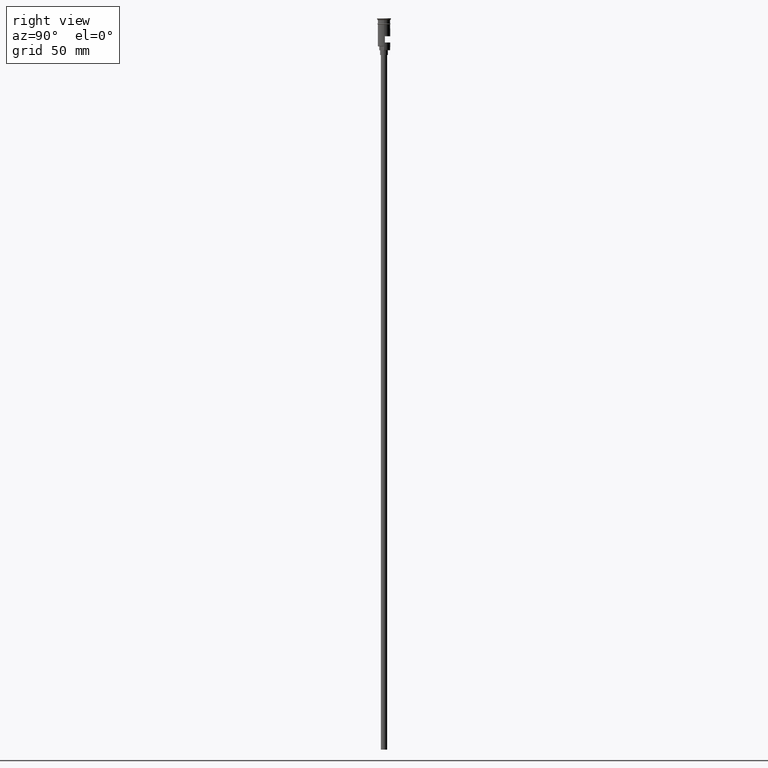
[diagram: clean part render]
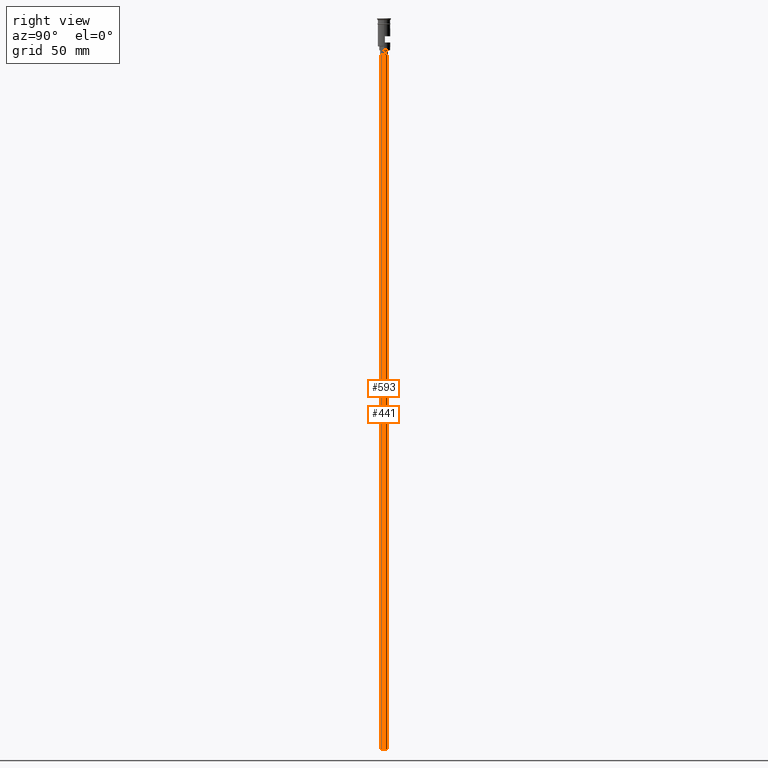
[diagram: same view with one multi-face feature highlighted, each face labeled with its STEP entity id]
A machine part, right view. The highlighted faces form ONE feature: a constant-radius fillet chain: 2 tangent blend faces with common blend radius 2 mm. The faces share edges in the B-rep.
Their STEP definitions:
[1] entity #593 (Cylinder):
#60 = CARTESIAN_POINT ( 'NONE',  ( 2.000000000000000000, 0.000000000000000000, -23.49999999999999645 ) ) ;
#97 = CARTESIAN_POINT ( 'NONE',  ( 0.000000000000000000, 0.000000000000000000, -470.5000000000000568 ) ) ;
#147 = CARTESIAN_POINT ( 'NONE',  ( 0.000000000000000000, 0.000000000000000000, -23.49999999999999645 ) ) ;
#163 = VERTEX_POINT ( 'NONE', #1095 ) ;
#179 = DIRECTION ( 'NONE',  ( -0.000000000000000000, -0.000000000000000000, 1.000000000000000000 ) ) ;
#192 = ORIENTED_EDGE ( 'NONE', *, *, #512, .F. ) ;
#247 = VERTEX_POINT ( 'NONE', #1582 ) ;
#288 = EDGE_CURVE ( 'NONE', #1576, #417, #1558, .T. ) ;
#290 = VECTOR ( 'NONE', #179, 1000.000000000000000 ) ;
#383 = ORIENTED_EDGE ( 'NONE', *, *, #1216, .T. ) ;
#417 = VERTEX_POINT ( 'NONE', #60 ) ;
#446 = ORIENTED_EDGE ( 'NONE', *, *, #798, .F. ) ;
#462 = CYLINDRICAL_SURFACE ( 'NONE', #1287, 2.000000000000000000 ) ;
#496 = CARTESIAN_POINT ( 'NONE',  ( -2.000000000000000000, 2.449293598294706414E-16, -470.5000000000000568 ) ) ;
#512 = EDGE_CURVE ( 'NONE', #163, #417, #1426, .T. ) ;
#570 = EDGE_LOOP ( 'NONE', ( #446, #383, #1082, #192 ) ) ;
#593 = ADVANCED_FACE ( 'NONE', ( #1195 ), #462, .T. ) ;
#748 = DIRECTION ( 'NONE',  ( -1.000000000000000000, 0.000000000000000000, 0.000000000000000000 ) ) ;
#761 = AXIS2_PLACEMENT_3D ( 'NONE', #147, #1388, #748 ) ;
#798 = EDGE_CURVE ( 'NONE', #247, #163, #1127, .T. ) ;
#804 = CARTESIAN_POINT ( 'NONE',  ( -2.000000000000000000, 2.449293598294706414E-16, -23.49999999999999645 ) ) ;
#818 = VECTOR ( 'NONE', #959, 1000.000000000000000 ) ;
#959 = DIRECTION ( 'NONE',  ( -0.000000000000000000, -0.000000000000000000, 1.000000000000000000 ) ) ;
#1055 = DIRECTION ( 'NONE',  ( -0.000000000000000000, -0.000000000000000000, 1.000000000000000000 ) ) ;
#1082 = ORIENTED_EDGE ( 'NONE', *, *, #288, .T. ) ;
#1095 = CARTESIAN_POINT ( 'NONE',  ( 2.000000000000000000, 0.000000000000000000, -470.5000000000000568 ) ) ;
#1112 = DIRECTION ( 'NONE',  ( -1.000000000000000000, 0.000000000000000000, 0.000000000000000000 ) ) ;
#1120 = DIRECTION ( 'NONE',  ( 0.000000000000000000, 0.000000000000000000, -1.000000000000000000 ) ) ;
#1127 = CIRCLE ( 'NONE', #1342, 2.000000000000000000 ) ;
#1195 = FACE_OUTER_BOUND ( 'NONE', #570, .T. ) ;
#1216 = EDGE_CURVE ( 'NONE', #247, #1576, #1603, .T. ) ;
#1277 = CARTESIAN_POINT ( 'NONE',  ( 2.000000000000000000, 0.000000000000000000, -470.5000000000000568 ) ) ;
#1287 = AXIS2_PLACEMENT_3D ( 'NONE', #97, #1055, #1567 ) ;
#1342 = AXIS2_PLACEMENT_3D ( 'NONE', #1361, #1120, #1112 ) ;
#1361 = CARTESIAN_POINT ( 'NONE',  ( 0.000000000000000000, 0.000000000000000000, -470.5000000000000568 ) ) ;
#1388 = DIRECTION ( 'NONE',  ( 0.000000000000000000, 0.000000000000000000, -1.000000000000000000 ) ) ;
#1426 = LINE ( 'NONE', #1277, #290 ) ;
#1558 = CIRCLE ( 'NONE', #761, 2.000000000000000000 ) ;
#1567 = DIRECTION ( 'NONE',  ( 1.000000000000000000, 0.000000000000000000, 0.000000000000000000 ) ) ;
#1576 = VERTEX_POINT ( 'NONE', #804 ) ;
#1582 = CARTESIAN_POINT ( 'NONE',  ( -2.000000000000000000, 2.449293598294706414E-16, -470.5000000000000568 ) ) ;
#1603 = LINE ( 'NONE', #496, #818 ) ;
[2] entity #441 (Cylinder):
#60 = CARTESIAN_POINT ( 'NONE',  ( 2.000000000000000000, 0.000000000000000000, -23.49999999999999645 ) ) ;
#104 = EDGE_LOOP ( 'NONE', ( #291, #409, #932, #1424 ) ) ;
#132 = AXIS2_PLACEMENT_3D ( 'NONE', #1125, #393, #1255 ) ;
#163 = VERTEX_POINT ( 'NONE', #1095 ) ;
#179 = DIRECTION ( 'NONE',  ( -0.000000000000000000, -0.000000000000000000, 1.000000000000000000 ) ) ;
#214 = EDGE_CURVE ( 'NONE', #417, #1576, #374, .T. ) ;
#240 = DIRECTION ( 'NONE',  ( 0.000000000000000000, 0.000000000000000000, -1.000000000000000000 ) ) ;
#247 = VERTEX_POINT ( 'NONE', #1582 ) ;
#290 = VECTOR ( 'NONE', #179, 1000.000000000000000 ) ;
#291 = ORIENTED_EDGE ( 'NONE', *, *, #1216, .F. ) ;
#322 = EDGE_CURVE ( 'NONE', #163, #247, #946, .T. ) ;
#374 = CIRCLE ( 'NONE', #402, 2.000000000000000000 ) ;
#393 = DIRECTION ( 'NONE',  ( 0.000000000000000000, 0.000000000000000000, -1.000000000000000000 ) ) ;
#402 = AXIS2_PLACEMENT_3D ( 'NONE', #1469, #240, #1166 ) ;
#409 = ORIENTED_EDGE ( 'NONE', *, *, #322, .F. ) ;
#416 = DIRECTION ( 'NONE',  ( 1.000000000000000000, 0.000000000000000000, 0.000000000000000000 ) ) ;
#417 = VERTEX_POINT ( 'NONE', #60 ) ;
#441 = ADVANCED_FACE ( 'NONE', ( #1295 ), #1555, .T. ) ;
#496 = CARTESIAN_POINT ( 'NONE',  ( -2.000000000000000000, 2.449293598294706414E-16, -470.5000000000000568 ) ) ;
#512 = EDGE_CURVE ( 'NONE', #163, #417, #1426, .T. ) ;
#693 = AXIS2_PLACEMENT_3D ( 'NONE', #782, #1163, #416 ) ;
#782 = CARTESIAN_POINT ( 'NONE',  ( 0.000000000000000000, 0.000000000000000000, -470.5000000000000568 ) ) ;
#804 = CARTESIAN_POINT ( 'NONE',  ( -2.000000000000000000, 2.449293598294706414E-16, -23.49999999999999645 ) ) ;
#818 = VECTOR ( 'NONE', #959, 1000.000000000000000 ) ;
#932 = ORIENTED_EDGE ( 'NONE', *, *, #512, .T. ) ;
#946 = CIRCLE ( 'NONE', #132, 2.000000000000000000 ) ;
#959 = DIRECTION ( 'NONE',  ( -0.000000000000000000, -0.000000000000000000, 1.000000000000000000 ) ) ;
#1095 = CARTESIAN_POINT ( 'NONE',  ( 2.000000000000000000, 0.000000000000000000, -470.5000000000000568 ) ) ;
#1125 = CARTESIAN_POINT ( 'NONE',  ( 0.000000000000000000, 0.000000000000000000, -470.5000000000000568 ) ) ;
#1163 = DIRECTION ( 'NONE',  ( -0.000000000000000000, -0.000000000000000000, 1.000000000000000000 ) ) ;
#1166 = DIRECTION ( 'NONE',  ( -1.000000000000000000, 0.000000000000000000, 0.000000000000000000 ) ) ;
#1216 = EDGE_CURVE ( 'NONE', #247, #1576, #1603, .T. ) ;
#1255 = DIRECTION ( 'NONE',  ( -1.000000000000000000, 0.000000000000000000, 0.000000000000000000 ) ) ;
#1277 = CARTESIAN_POINT ( 'NONE',  ( 2.000000000000000000, 0.000000000000000000, -470.5000000000000568 ) ) ;
#1295 = FACE_OUTER_BOUND ( 'NONE', #104, .T. ) ;
#1424 = ORIENTED_EDGE ( 'NONE', *, *, #214, .T. ) ;
#1426 = LINE ( 'NONE', #1277, #290 ) ;
#1469 = CARTESIAN_POINT ( 'NONE',  ( 0.000000000000000000, 0.000000000000000000, -23.49999999999999645 ) ) ;
#1555 = CYLINDRICAL_SURFACE ( 'NONE', #693, 2.000000000000000000 ) ;
#1576 = VERTEX_POINT ( 'NONE', #804 ) ;
#1582 = CARTESIAN_POINT ( 'NONE',  ( -2.000000000000000000, 2.449293598294706414E-16, -470.5000000000000568 ) ) ;
#1603 = LINE ( 'NONE', #496, #818 ) ;